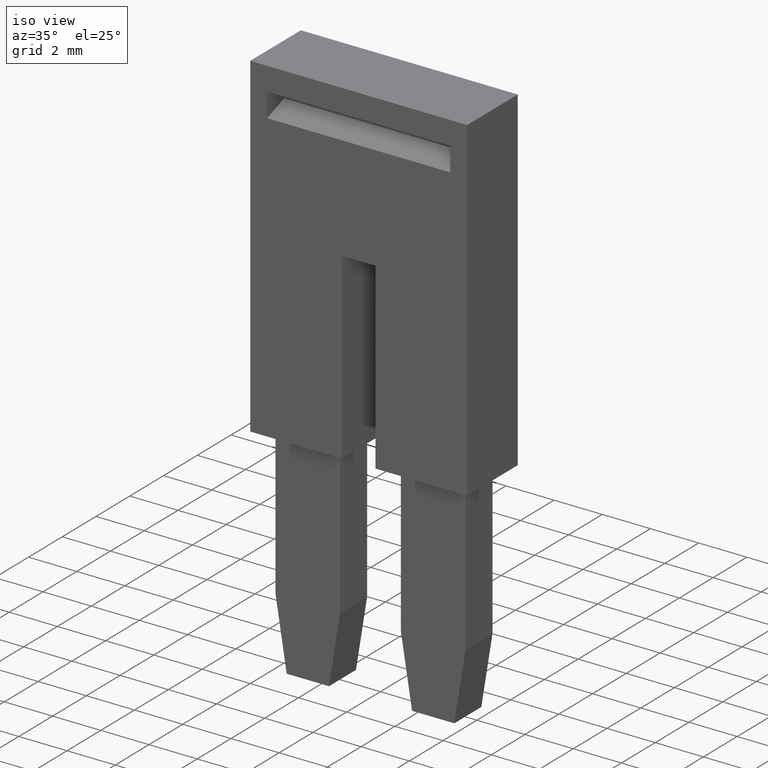
[diagram: clean part render]
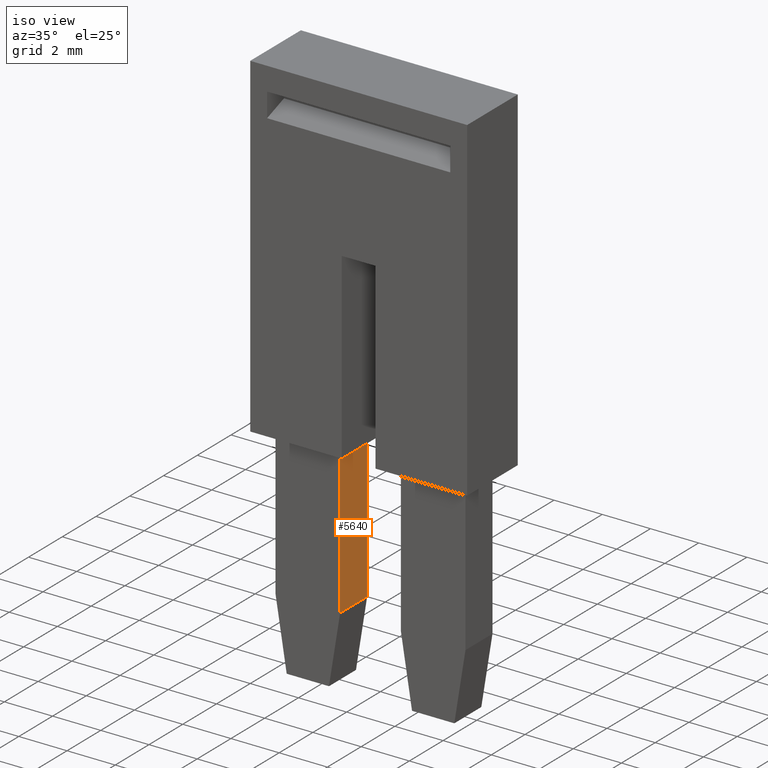
[diagram: same view with one face highlighted and labeled with its STEP entity id]
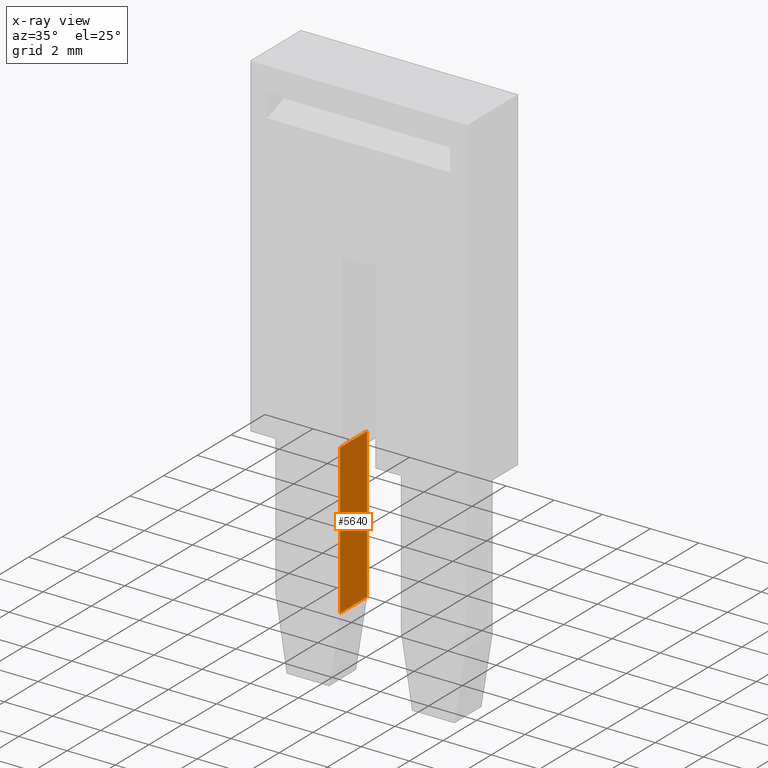
[diagram: x-ray of the same camera — body ghosted, the highlighted face saturated]
A machine part, iso view. The second image highlights one B-rep face of the part: STEP entity #5640.
The next image is the same camera in x-ray: the body ghosted, the highlighted face saturated — about 0% of this face is hidden behind the body in this view.
In plain terms, the highlighted planar face has unit normal (-1, 0, 0).
Its self-contained STEP definition (entity closure, byte-faithful):
#1950=CARTESIAN_POINT('',(5.60716722168535,-23.0750000000002,
52.5999999987961));
#1960=DIRECTION('',(1.,1.26010313294955E-13,8.57252759403298E-16));
#1970=VECTOR('',#1960,1.);
#1980=LINE('',#1950,#1970);
#1990=CARTESIAN_POINT('',(3.30716722167658,-23.0750000000005,
52.5999999987961));
#2000=VERTEX_POINT('',#1990);
#2010=CARTESIAN_POINT('',(4.90716722167658,-23.0750000000003,
52.5999999987961));
#2020=VERTEX_POINT('',#2010);
#2030=EDGE_CURVE('',#2000,#2020,#1980,.T.);
#5340=CARTESIAN_POINT('',(3.30716722167602,-18.5750000001071,
52.5999999987961));
#5350=DIRECTION('',(8.57252759403268E-16,2.37897214115664E-16,-1.));
#5360=DIRECTION('',(-1.26010313294958E-13,1.,2.37897214115556E-16));
#5370=AXIS2_PLACEMENT_3D('',#5340,#5350,#5360);
#5380=PLANE('',#5370);
#5390=CARTESIAN_POINT('',(5.60716722168535,-29.2807420639548,
52.5999999987961));
#5400=DIRECTION('',(-1.,-1.26010313294958E-13,-8.572527594033E-16));
#5410=VECTOR('',#5400,1.);
#5420=LINE('',#5390,#5410);
#5430=CARTESIAN_POINT('',(4.90716722167737,-29.2807420639549,
52.5999999987961));
#5440=VERTEX_POINT('',#5430);
#5450=CARTESIAN_POINT('',(3.30716722167737,-29.2807420639551,
52.5999999987961));
#5460=VERTEX_POINT('',#5450);
#5470=EDGE_CURVE('',#5440,#5460,#5420,.T.);
#5480=ORIENTED_EDGE('',*,*,#5470,.F.);
#5490=CARTESIAN_POINT('',(3.30716722167523,-12.305124,52.5999999987961))
;
#5500=DIRECTION('',(1.26010313294958E-13,-1.,-2.37897214115556E-16));
#5510=VECTOR('',#5500,1.);
#5520=LINE('',#5490,#5510);
#5530=EDGE_CURVE('',#2000,#5460,#5520,.T.);
#5540=ORIENTED_EDGE('',*,*,#5530,.T.);
#5550=ORIENTED_EDGE('',*,*,#2030,.F.);
#5560=CARTESIAN_POINT('',(4.90716722167523,-12.305124,52.5999999987961))
;
#5570=DIRECTION('',(1.26010313294958E-13,-1.,-2.37897214115556E-16));
#5580=VECTOR('',#5570,1.);
#5590=LINE('',#5560,#5580);
#5600=EDGE_CURVE('',#2020,#5440,#5590,.T.);
#5610=ORIENTED_EDGE('',*,*,#5600,.F.);
#5620=EDGE_LOOP('',(#5610,#5550,#5540,#5480));
#5630=FACE_OUTER_BOUND('',#5620,.T.);
#5640=ADVANCED_FACE('',(#5630),#5380,.F.);